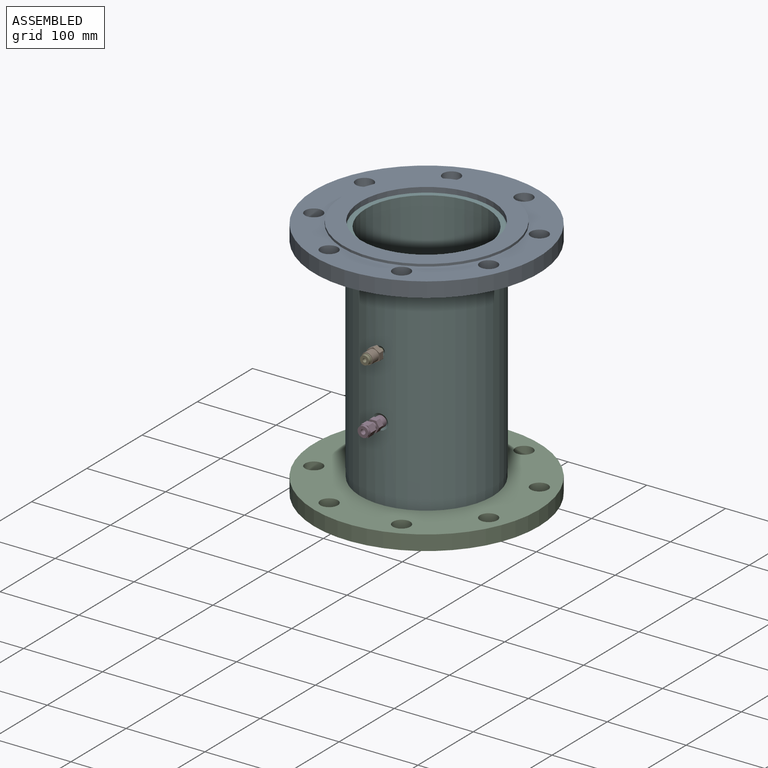
[diagram: assembled view]
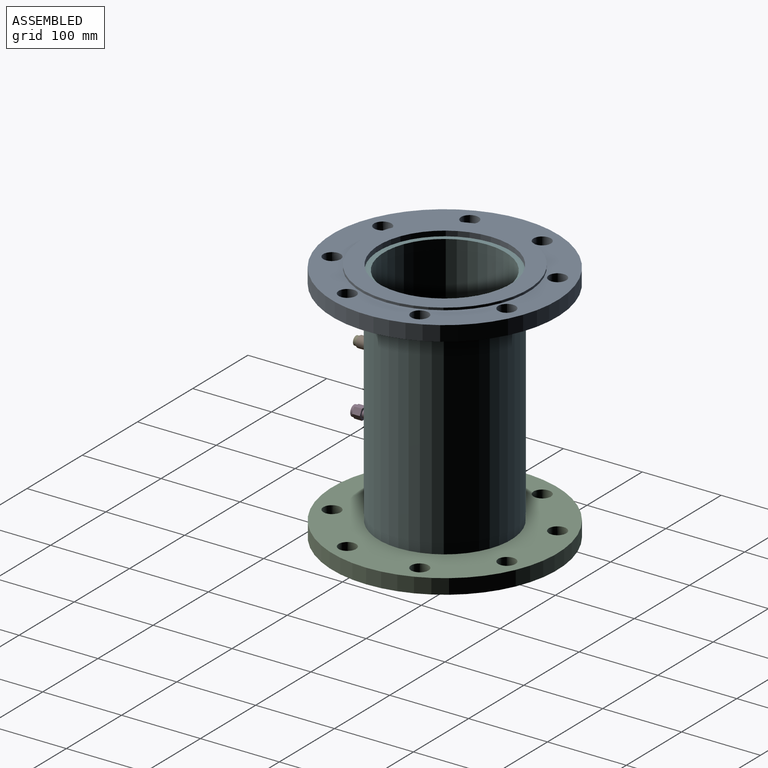
[diagram: assembled view, second angle]
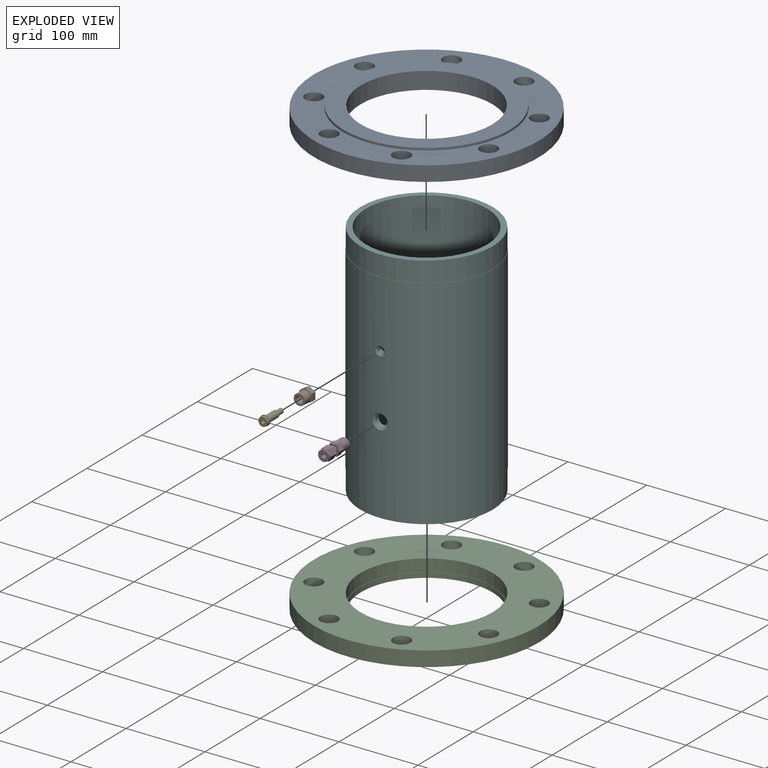
[diagram: exploded view]
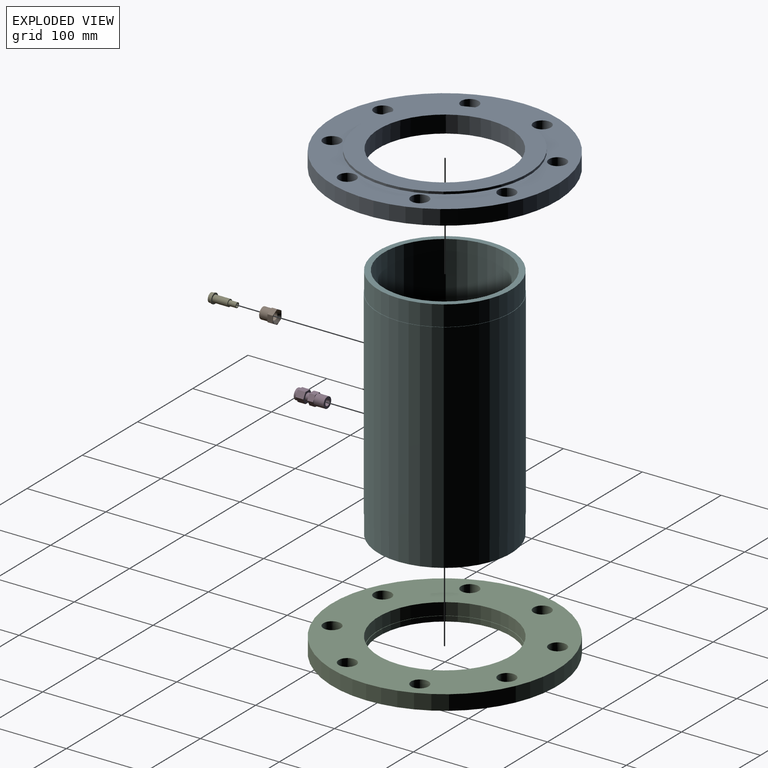
[diagram: exploded view, second angle]
ASSEMBLY  parts=6 mates=5
PART A: 16 faces, bbox 285x285x22 mm
  f0: plane 168x168mm, normal (0,0,1), area 263.1mm2, adj f1,f7
  f1: cylinder r=83.5mm len=167mm, axis (0,0,1), area 3410.2mm2, adj f0,f2
  f2: plane 212x212mm, normal (0,0,-1), area 13395mm2, adj f1,f3
  f3: cylinder r=106mm len=212mm, axis (0,0,1), area 1998.1mm2, adj f2,f4
  f4: plane 285x285mm, normal (0,0,-1), area 25454mm2, adj f3,f5,f8,f9,f10,f11,f12,f13
  f5: cylinder r=142.5mm len=285mm, axis (0,0,1), area 17011.7mm2, adj f4,f6
  f6: plane 285x285mm, normal (0,0,1), area 38585.8mm2, adj f5,f7,f8,f9,f10,f11,f12,f13
  f7: cylinder r=84mm len=168mm, axis (0,0,1), area 8180.7mm2, adj f0,f6
  f8: cylinder r=11mm len=22mm, axis (0,0,1), area 1313.2mm2, adj f4,f6
  f9: cylinder r=11mm len=22mm, axis (0,0,1), area 1313.2mm2, adj f4,f6
  f10: cylinder r=11mm len=22mm, axis (0,0,1), area 1313.2mm2, adj f4,f6
  f11: cylinder r=11mm len=22mm, axis (0,0,1), area 1313.2mm2, adj f4,f6
  f12: cylinder r=11mm len=22mm, axis (0,0,1), area 1313.2mm2, adj f4,f6
  f13: cylinder r=11mm len=22mm, axis (0,0,1), area 1313.2mm2, adj f4,f6
  f14: cylinder r=11mm len=22mm, axis (0,0,1), area 1313.2mm2, adj f4,f6
  f15: cylinder r=11mm len=22mm, axis (0,0,1), area 1313.2mm2, adj f4,f6
PART B: 18 faces, bbox 17.9x18x15.8 mm
  f0: cylinder r=9mm len=6.8mm, axis (-1,0,0), area 2.9mm2, adj f5,f8,f14,f17
  f1: cylinder r=9mm len=6.8mm, axis (-1,0,0), area 2.9mm2, adj f5,f8,f16,f17
  f2: cylinder r=9mm len=6.8mm, axis (-1,0,0), area 2.9mm2, adj f5,f8,f15,f16
  f3: cylinder r=9mm len=6.8mm, axis (-1,0,0), area 2.9mm2, adj f5,f8,f12,f14
  f4: cylinder r=9mm len=6.8mm, axis (-1,0,0), area 2.9mm2, adj f5,f8,f13,f15
  f5: plane 18x15.8mm, normal (-1,0,0), area 57.7mm2, adj f0,f1,f2,f3,f4,f9,f10,f12
  f6: cylinder r=4.58mm len=14.9mm, axis (-1,0,0), area 428.3mm2, adj f7,f11
  f7: cone r=7.58mm half-angle=45deg, axis (1,0,0), area 161.9mm2, adj f6,f8
  f8: plane 18x15.8mm, normal (1,0,0), area 35.8mm2, adj f0,f1,f2,f3,f4,f7,f9,f12
  f9: cylinder r=9mm len=6.8mm, axis (-1,0,0), area 2.9mm2, adj f5,f8,f12,f13
  f10: cylinder r=7.1mm len=14.2mm, axis (-1,0,0), area 495.2mm2, adj f5,f11
  f11: plane 14.2x14.2mm, normal (-1,0,0), area 92.6mm2, adj f6,f10
  f12: plane 8.62x6.8mm, normal (0,0,1), area 58.6mm2, adj f3,f5,f8,f9
  f13: plane 7.47x6.8mm, normal (0,-0.87,0.5), area 58.6mm2, adj f4,f5,f8,f9
  f14: plane 7.47x6.8mm, normal (0,0.87,0.5), area 58.6mm2, adj f0,f3,f5,f8
  f15: plane 7.47x6.8mm, normal (0,-0.87,-0.5), area 58.6mm2, adj f2,f4,f5,f8
  f16: plane 8.62x6.8mm, normal (0,0,-1), area 58.6mm2, adj f1,f2,f5,f8
  f17: plane 7.47x6.8mm, normal (0,0.87,-0.5), area 58.6mm2, adj f0,f1,f5,f8
PART C: same geometry as A
PART D: 24 faces, bbox 16.1x13.9x37.9 mm
  f0: plane 13.7x13.7mm, normal (0,0,1), area 117.7mm2, adj f1,f11
  f1: cylinder r=3.08mm len=26.6mm, axis (0,0,-1), area 513.9mm2, adj f0,f2
  f2: plane 7.6x7.6mm, normal (0,0,-1), area 15.7mm2, adj f1,f3
  f3: cylinder r=3.8mm len=11.3mm, axis (0,0,-1), area 269.8mm2, adj f2,f4
  f4: plane 13.7x13.7mm, normal (0,0,-1), area 102mm2, adj f3,f5
  f5: cylinder r=6.85mm len=13.7mm, axis (0,0,-1), area 542.3mm2, adj f4,f6
  f6: plane 16.05x13.9mm, normal (0,0,-1), area 19.9mm2, adj f5,f18,f19,f20,f21,f22,f23
  f7: plane 16.05x13.9mm, normal (0,0,1), area 99.4mm2, adj f8,f18,f19,f20,f21,f22,f23
  f8: cylinder r=4.65mm len=9.3mm, axis (0,0,-1), area 146.1mm2, adj f7,f9
  f9: plane 16.05x13.9mm, normal (0,0,-1), area 99.4mm2, adj f8,f12,f13,f14,f15,f16,f17
  f10: plane 16.05x13.9mm, normal (0,0,1), area 19.9mm2, adj f11,f12,f13,f14,f15,f16,f17
  f11: cylinder r=6.85mm len=13.7mm, axis (0,0,-1), area 129.1mm2, adj f0,f10
  f12: plane 9.9x8.03mm, normal (0,1,0), area 79.4mm2, adj f9,f10,f13,f17
  f13: plane 9.9x6.95mm, normal (0.87,0.5,0), area 79.4mm2, adj f9,f10,f12,f14
  f14: plane 9.9x6.95mm, normal (0.87,-0.5,0), area 79.4mm2, adj f9,f10,f13,f15
  f15: plane 9.9x8.03mm, normal (0,-1,0), area 79.4mm2, adj f9,f10,f14,f16
  f16: plane 9.9x6.95mm, normal (-0.87,-0.5,0), area 79.4mm2, adj f9,f10,f15,f17
  f17: plane 9.9x6.95mm, normal (-0.87,0.5,0), area 79.4mm2, adj f9,f10,f12,f16
  f18: plane 7.4x6.95mm, normal (0.87,0.5,0), area 59.4mm2, adj f6,f7,f19,f23
  f19: plane 7.4x6.95mm, normal (0.87,-0.5,0), area 59.4mm2, adj f6,f7,f18,f20
  f20: plane 8.03x7.4mm, normal (0,-1,0), area 59.4mm2, adj f6,f7,f19,f21
  f21: plane 7.4x6.95mm, normal (-0.87,-0.5,0), area 59.4mm2, adj f6,f7,f20,f22
  f22: plane 7.4x6.95mm, normal (-0.87,0.5,0), area 59.4mm2, adj f6,f7,f21,f23
  f23: plane 8.03x7.4mm, normal (0,1,0), area 59.4mm2, adj f6,f7,f18,f22
PART E: 10 faces, bbox 12.6x12.6x33.6 mm
  f0: cylinder r=2.3mm len=33.55mm, axis (0,0,-1), area 484.8mm2, adj f1,f9
  f1: plane 6.35x6.35mm, normal (0,0,-1), area 15.1mm2, adj f0,f2
  f2: cylinder r=3.17mm len=9.55mm, axis (0,0,-1), area 190.5mm2, adj f1,f3
  f3: plane 8.8x8.8mm, normal (0,0,-1), area 29.2mm2, adj f2,f4
  f4: cylinder r=4.4mm len=19.15mm, axis (0,0,-1), area 529.4mm2, adj f3,f5
  f5: plane 12.6x12.6mm, normal (0,0,-1), area 63.9mm2, adj f4,f6
  f6: cylinder r=6.3mm len=12.6mm, axis (0,0,-1), area 59.4mm2, adj f5,f7
  f7: plane 12.6x12.6mm, normal (0,0,1), area 23.5mm2, adj f6,f8
  f8: cylinder r=5.68mm len=11.35mm, axis (0,0,-1), area 119.5mm2, adj f7,f9
  f9: plane 11.35x11.35mm, normal (0,0,1), area 84.6mm2, adj f0,f8
PART F: 12 faces, bbox 302x168.8x168.8 mm
  f0: cylinder r=84.4mm len=250mm, axis (-1,0,0), area 132148.3mm2, adj f2,f7,f10,f11
  f1: cylinder r=76.9mm len=302mm, axis (-1,0,0), area 145739mm2, adj f4,f5,f8,f9
  f2: plane 168.8x168.8mm, normal (-1,0,0), area 211.6mm2, adj f0,f3
  f3: cylinder r=84mm len=168mm, axis (-1,0,0), area 13722.5mm2, adj f2,f4
  f4: plane 168x168mm, normal (-1,0,0), area 3588.9mm2, adj f1,f3
  f5: plane 168x168mm, normal (1,0,0), area 3588.9mm2, adj f1,f6
  f6: cylinder r=84mm len=168mm, axis (-1,0,0), area 13722.5mm2, adj f5,f7
  f7: plane 168.8x168.8mm, normal (1,0,0), area 211.6mm2, adj f0,f6
  f8: cylinder r=3.17mm len=6.35mm, axis (0,1,0), area 107.9mm2, adj f1,f10
  f9: cylinder r=6.85mm len=13.7mm, axis (0,1,0), area 228mm2, adj f1,f11
  f10: bspline ~12.29x12.01mm, area 101.4mm2, adj f0,f8
  f11: bspline ~19.8x19.36mm, area 184.4mm2, adj f0,f9
PLACE A rot(axis=(0,1,0),180deg) t=(0.69,0.32,303.89)mm
PLACE B rot(axis=(0.58,0.58,0.58),120deg) t=(0.69,-107.35,186.89)mm
PLACE C t=(0.69,0.32,-11.11)mm fixed
PLACE D rot(axis=(0,-0.71,0.71),180deg) t=(0.69,-76.9,105.89)mm
PLACE E rot(axis=(0,-0.71,0.71),180deg) t=(0.69,-78.65,186.89)mm
PLACE F rot(axis=(0,-1,0),90deg) t=(0.69,0.32,-4.61)mm
MATE fastened E.f0 <-> F.f8  axis (0,1,0) through (0.69,-83.42,186.89)mm
MATE fastened D.f1 <-> F.f9  axis (0,1,0) through (0.69,-83.2,105.89)mm
MATE fastened B.f0 <-> E.f0  axis (0,-1,0) through (0.69,-107.35,186.89)mm
MATE fastened A.f1 <-> F.f0  axis (0,0,1) through (0.69,0.32,297.39)mm
MATE fastened F.f0 <-> C.f1  axis (0,0,1) through (0.69,0.32,-4.61)mm
